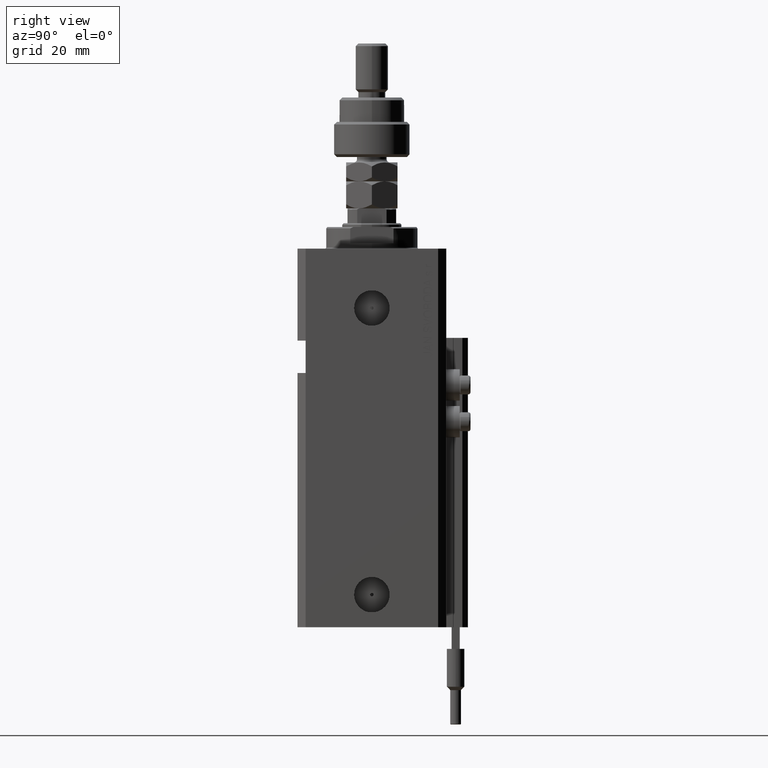
[diagram: clean part render]
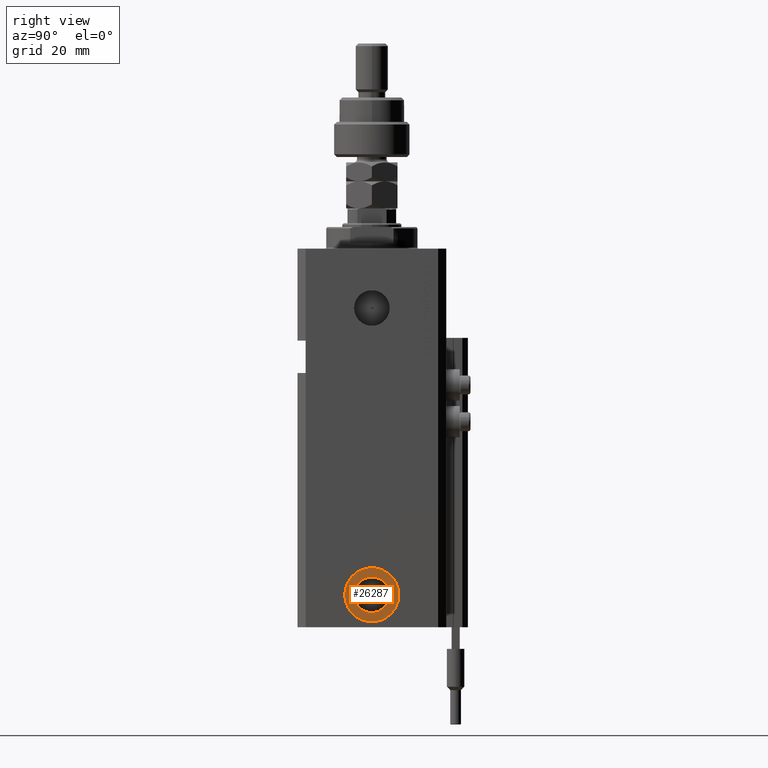
[diagram: same view with one face highlighted and labeled with its STEP entity id]
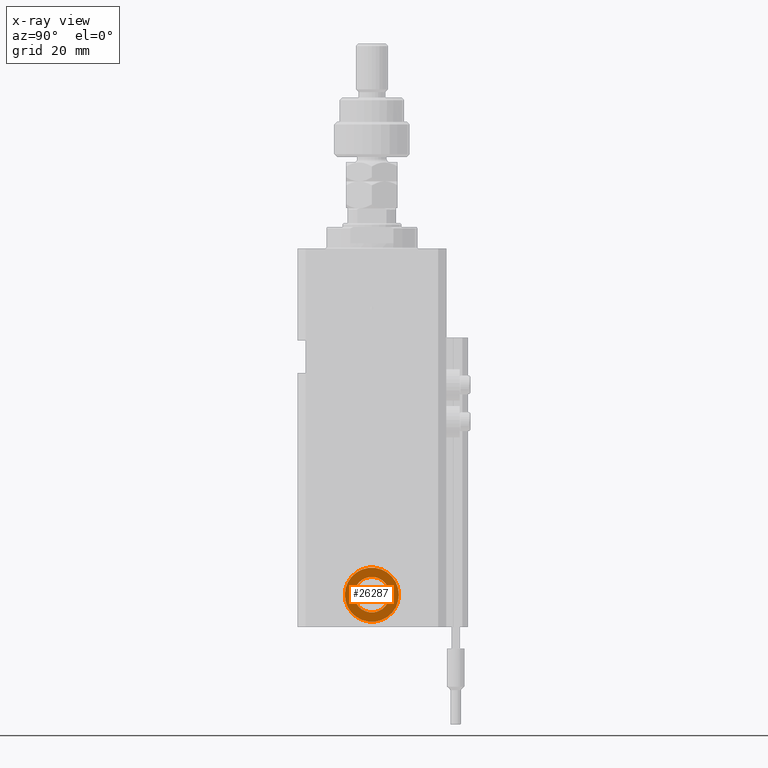
[diagram: x-ray of the same camera — body ghosted, the highlighted face saturated]
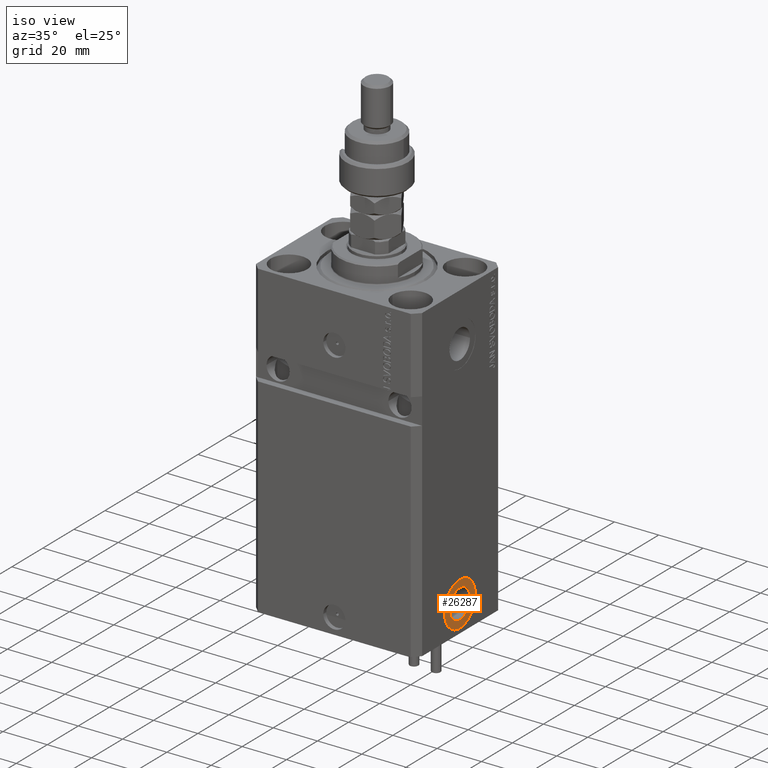
[diagram: same view with one face highlighted and labeled with its STEP entity id]
A machine part, right view. The second image highlights one B-rep face of the part: STEP entity #26287.
The next image is the same camera in x-ray: the body ghosted, the highlighted face saturated — about 0% of this face is hidden behind the body in this view.
A second angle (iso view) of the same face is appended — the face is thin or edge-on in the first view.
In plain terms, the highlighted planar face has unit normal (1, -0, 0).
Its self-contained STEP definition (entity closure, byte-faithful):
#4216 = DIRECTION ( 'NONE',  ( 1.370906090437601279E-14, 1.000000000000000000, 0.000000000000000000 ) ) ;
#5611 = CARTESIAN_POINT ( 'NONE',  ( 37.40000000000025437, -4.022543243901666471E-13, -128.0000000000000000 ) ) ;
#9831 = VERTEX_POINT ( 'NONE', #48947 ) ;
#10867 = FACE_OUTER_BOUND ( 'NONE', #15803, .T. ) ;
#14546 = DIRECTION ( 'NONE',  ( 1.000000000000000000, -1.334402673828349134E-14, 0.000000000000000000 ) ) ;
#14636 = EDGE_LOOP ( 'NONE', ( #24927, #15048 ) ) ;
#15048 = ORIENTED_EDGE ( 'NONE', *, *, #42416, .F. ) ;
#15803 = EDGE_LOOP ( 'NONE', ( #17045, #36260 ) ) ;
#17045 = ORIENTED_EDGE ( 'NONE', *, *, #39880, .T. ) ;
#17245 = CIRCLE ( 'NONE', #40045, 10.00000000000000888 ) ;
#18277 = FACE_BOUND ( 'NONE', #14636, .T. ) ;
#18529 = CARTESIAN_POINT ( 'NONE',  ( 37.40000000000025437, -4.022543243901666471E-13, -128.0000000000000000 ) ) ;
#18891 = CARTESIAN_POINT ( 'NONE',  ( 37.40000000000033964, 6.579999999999583515, -128.0000000000000000 ) ) ;
#22125 = CIRCLE ( 'NONE', #27837, 6.579999999999985860 ) ;
#22607 = DIRECTION ( 'NONE',  ( 1.334402673828349134E-14, 1.000000000000000000, 0.000000000000000000 ) ) ;
#24927 = ORIENTED_EDGE ( 'NONE', *, *, #48809, .F. ) ;
#26287 = ADVANCED_FACE ( 'NONE', ( #18277, #10867 ), #45822, .T. ) ;
#26517 = CARTESIAN_POINT ( 'NONE',  ( 37.40000000000025437, -4.022543243901666471E-13, -128.0000000000000000 ) ) ;
#26888 = AXIS2_PLACEMENT_3D ( 'NONE', #26517, #34927, #34665 ) ;
#27837 = AXIS2_PLACEMENT_3D ( 'NONE', #43771, #28187, #4216 ) ;
#28187 = DIRECTION ( 'NONE',  ( 1.000000000000000000, -1.334402673828349134E-14, 0.000000000000000000 ) ) ;
#28553 = CARTESIAN_POINT ( 'NONE',  ( 37.40000000000016200, -6.580000000000387317, -128.0000000000000000 ) ) ;
#30603 = CARTESIAN_POINT ( 'NONE',  ( 37.40000000000025437, -4.022543243901666471E-13, -128.0000000000000000 ) ) ;
#33715 = VERTEX_POINT ( 'NONE', #28553 ) ;
#34180 = DIRECTION ( 'NONE',  ( 1.370906090437601279E-14, 1.000000000000000000, 0.000000000000000000 ) ) ;
#34526 = CARTESIAN_POINT ( 'NONE',  ( 37.40000000000011937, -10.00000000000041211, -128.0000000000000000 ) ) ;
#34665 = DIRECTION ( 'NONE',  ( 1.318389841742372287E-14, 1.000000000000000000, 0.000000000000000000 ) ) ;
#34927 = DIRECTION ( 'NONE',  ( 1.000000000000000000, -1.334402673828349134E-14, 0.000000000000000000 ) ) ;
#35270 = AXIS2_PLACEMENT_3D ( 'NONE', #30603, #14546, #34180 ) ;
#35856 = CIRCLE ( 'NONE', #26888, 10.00000000000000888 ) ;
#36260 = ORIENTED_EDGE ( 'NONE', *, *, #45750, .T. ) ;
#36987 = DIRECTION ( 'NONE',  ( 1.000000000000000000, -1.334402673828349134E-14, 0.000000000000000000 ) ) ;
#39880 = EDGE_CURVE ( 'NONE', #9831, #46106, #35856, .T. ) ;
#40045 = AXIS2_PLACEMENT_3D ( 'NONE', #5611, #36987, #42014 ) ;
#40471 = AXIS2_PLACEMENT_3D ( 'NONE', #18529, #42003, #22607 ) ;
#42003 = DIRECTION ( 'NONE',  ( 1.000000000000000000, -1.334402673828349134E-14, 0.000000000000000000 ) ) ;
#42014 = DIRECTION ( 'NONE',  ( 1.318389841742372287E-14, 1.000000000000000000, 0.000000000000000000 ) ) ;
#42416 = EDGE_CURVE ( 'NONE', #33715, #43866, #22125, .T. ) ;
#43771 = CARTESIAN_POINT ( 'NONE',  ( 37.40000000000025437, -4.022543243901666471E-13, -128.0000000000000000 ) ) ;
#43866 = VERTEX_POINT ( 'NONE', #18891 ) ;
#45750 = EDGE_CURVE ( 'NONE', #46106, #9831, #17245, .T. ) ;
#45822 = PLANE ( 'NONE',  #40471 ) ;
#46106 = VERTEX_POINT ( 'NONE', #34526 ) ;
#48321 = CIRCLE ( 'NONE', #35270, 6.579999999999985860 ) ;
#48809 = EDGE_CURVE ( 'NONE', #43866, #33715, #48321, .T. ) ;
#48947 = CARTESIAN_POINT ( 'NONE',  ( 37.40000000000038227, 9.999999999999605649, -128.0000000000000000 ) ) ;